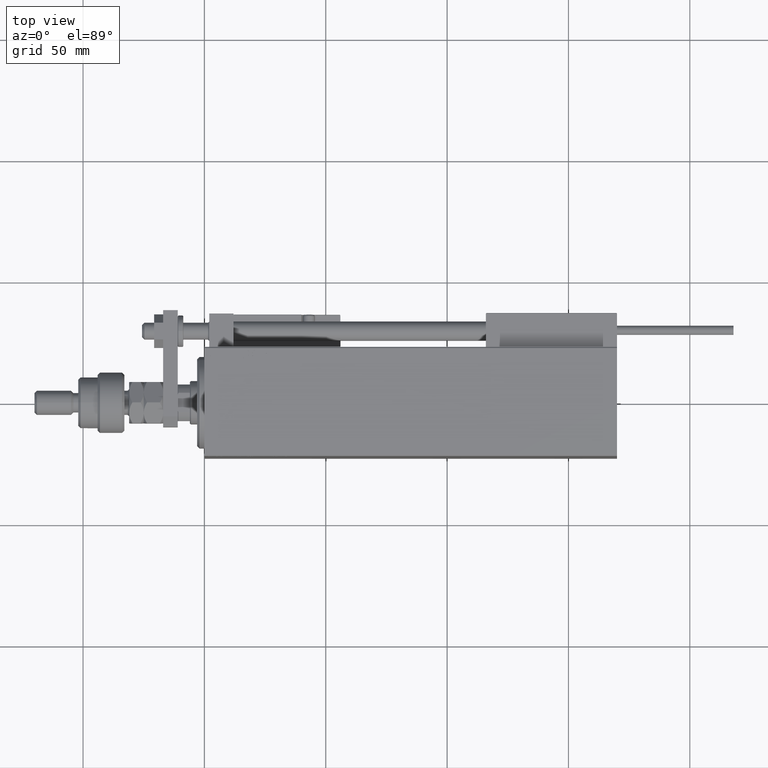
[diagram: clean part render]
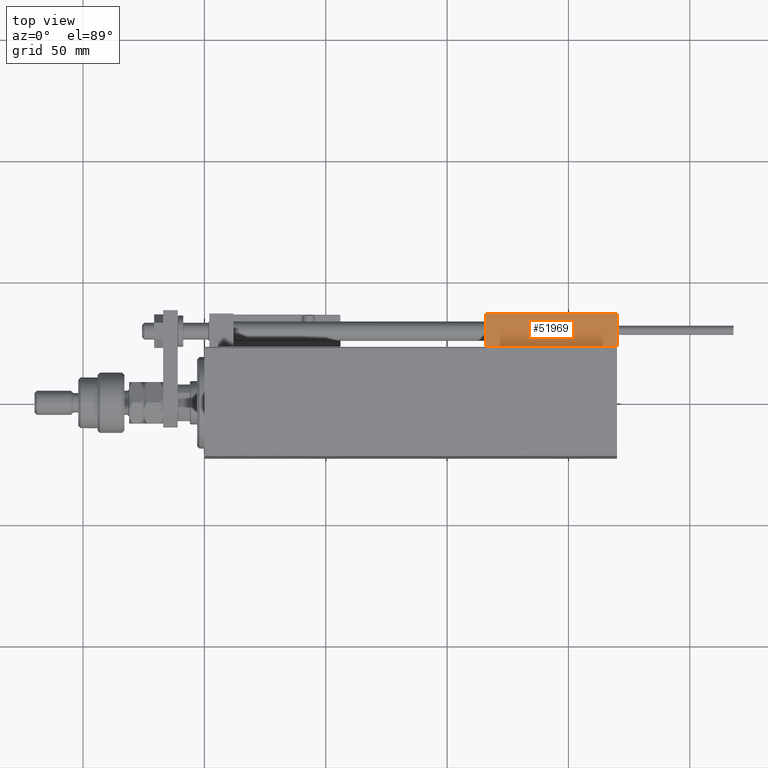
[diagram: same view with one face highlighted and labeled with its STEP entity id]
A machine part, top view. The second image highlights one B-rep face of the part: STEP entity #51969.
In plain terms, the highlighted planar face has unit normal (-0, -0, -1).
Its self-contained STEP definition (entity closure, byte-faithful):
#136 = CARTESIAN_POINT ( 'NONE',  ( 27.00000000000006395, 20.00000000000001776, 0.000000000000000000 ) ) ;
#314 = LINE ( 'NONE', #33261, #28316 ) ;
#843 = VERTEX_POINT ( 'NONE', #10158 ) ;
#1700 = VECTOR ( 'NONE', #29759, 1000.000000000000000 ) ;
#1772 = VERTEX_POINT ( 'NONE', #29110 ) ;
#3245 = CARTESIAN_POINT ( 'NONE',  ( 27.00000000000006395, 20.00000000000001776, 13.70000000000000107 ) ) ;
#3292 = ORIENTED_EDGE ( 'NONE', *, *, #10646, .T. ) ;
#4588 = DIRECTION ( 'NONE',  ( -0.000000000000000000, -0.000000000000000000, -1.000000000000000000 ) ) ;
#7915 = DIRECTION ( 'NONE',  ( -1.000000000000000000, 6.424901762877062263E-17, 0.000000000000000000 ) ) ;
#9049 = FACE_OUTER_BOUND ( 'NONE', #43007, .T. ) ;
#10158 = CARTESIAN_POINT ( 'NONE',  ( -26.99999999999993605, 20.00000000000002132, 0.000000000000000000 ) ) ;
#10646 = EDGE_CURVE ( 'NONE', #13378, #843, #40340, .T. ) ;
#12526 = DIRECTION ( 'NONE',  ( 1.000000000000000000, -6.424901762877063495E-17, -0.000000000000000000 ) ) ;
#13378 = VERTEX_POINT ( 'NONE', #14270 ) ;
#13604 = DIRECTION ( 'NONE',  ( 1.000000000000000000, -6.424901762877063495E-17, 0.000000000000000000 ) ) ;
#14270 = CARTESIAN_POINT ( 'NONE',  ( 27.00000000000006395, 20.00000000000001776, 0.000000000000000000 ) ) ;
#15217 = EDGE_CURVE ( 'NONE', #1772, #40453, #37143, .T. ) ;
#16312 = VECTOR ( 'NONE', #12526, 1000.000000000000000 ) ;
#16339 = EDGE_CURVE ( 'NONE', #40453, #13378, #22770, .T. ) ;
#17047 = CARTESIAN_POINT ( 'NONE',  ( 27.00000000000006395, 20.00000000000001776, 13.70000000000000107 ) ) ;
#22764 = ORIENTED_EDGE ( 'NONE', *, *, #33987, .F. ) ;
#22770 = LINE ( 'NONE', #39097, #1700 ) ;
#25682 = PLANE ( 'NONE',  #36344 ) ;
#28316 = VECTOR ( 'NONE', #4588, 1000.000000000000000 ) ;
#29110 = CARTESIAN_POINT ( 'NONE',  ( -26.99999999999993605, 20.00000000000002132, 13.70000000000000107 ) ) ;
#29759 = DIRECTION ( 'NONE',  ( -0.000000000000000000, -0.000000000000000000, -1.000000000000000000 ) ) ;
#33261 = CARTESIAN_POINT ( 'NONE',  ( -26.99999999999993605, 20.00000000000002132, 14.00000000000000000 ) ) ;
#33762 = ORIENTED_EDGE ( 'NONE', *, *, #15217, .T. ) ;
#33987 = EDGE_CURVE ( 'NONE', #1772, #843, #314, .T. ) ;
#34229 = CARTESIAN_POINT ( 'NONE',  ( 27.00000000000006395, 20.00000000000001776, 14.00000000000000000 ) ) ;
#36344 = AXIS2_PLACEMENT_3D ( 'NONE', #34229, #50559, #13604 ) ;
#37143 = LINE ( 'NONE', #17047, #16312 ) ;
#38287 = ORIENTED_EDGE ( 'NONE', *, *, #16339, .T. ) ;
#39097 = CARTESIAN_POINT ( 'NONE',  ( 27.00000000000006395, 20.00000000000001776, 14.00000000000000000 ) ) ;
#40340 = LINE ( 'NONE', #136, #43545 ) ;
#40453 = VERTEX_POINT ( 'NONE', #3245 ) ;
#43007 = EDGE_LOOP ( 'NONE', ( #22764, #33762, #38287, #3292 ) ) ;
#43545 = VECTOR ( 'NONE', #7915, 1000.000000000000000 ) ;
#50559 = DIRECTION ( 'NONE',  ( -6.424901762877063495E-17, -1.000000000000000000, 0.000000000000000000 ) ) ;
#51969 = ADVANCED_FACE ( 'NONE', ( #9049 ), #25682, .F. ) ;